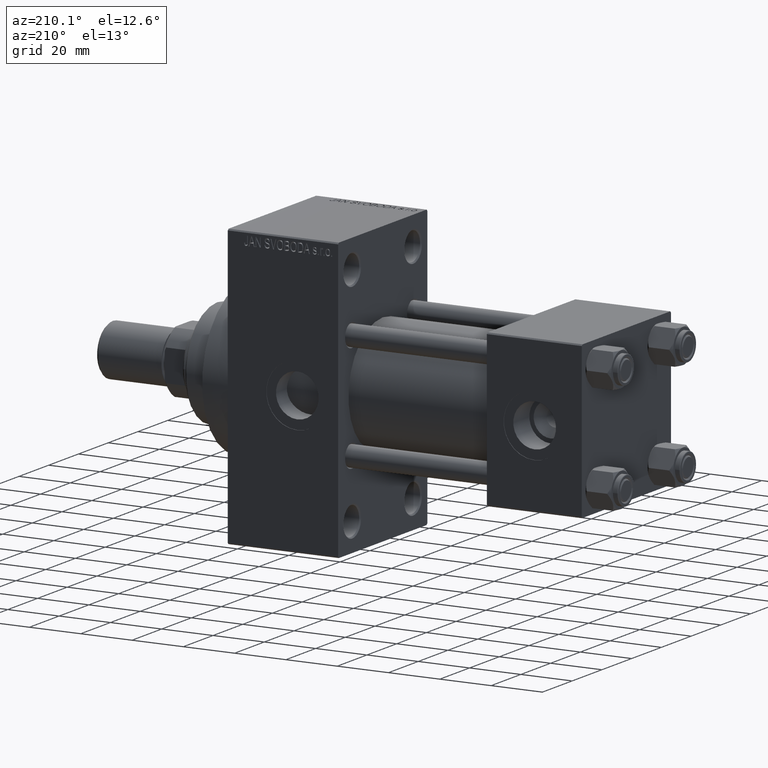
[diagram: clean part render]
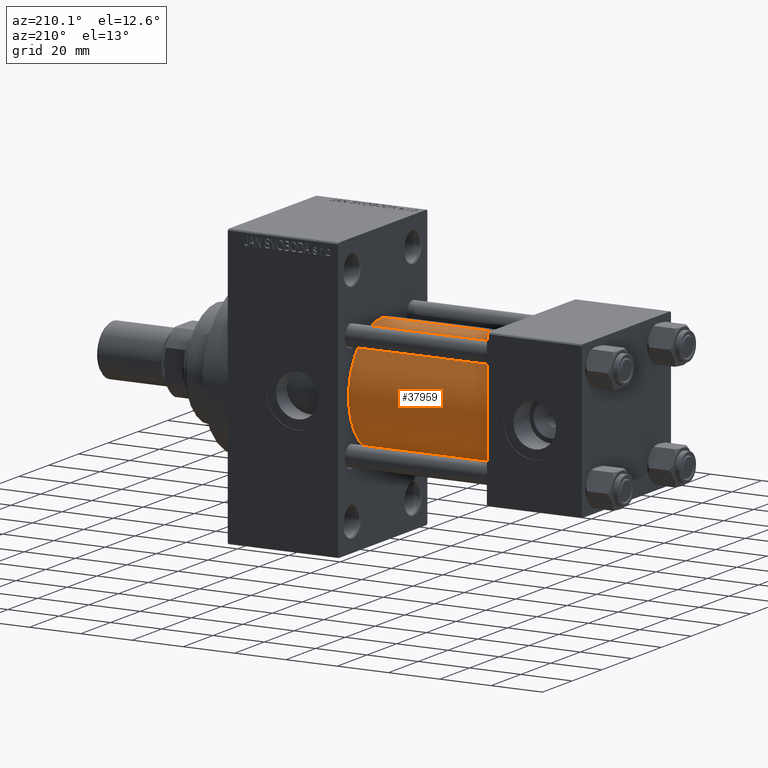
[diagram: same view with one face highlighted and labeled with its STEP entity id]
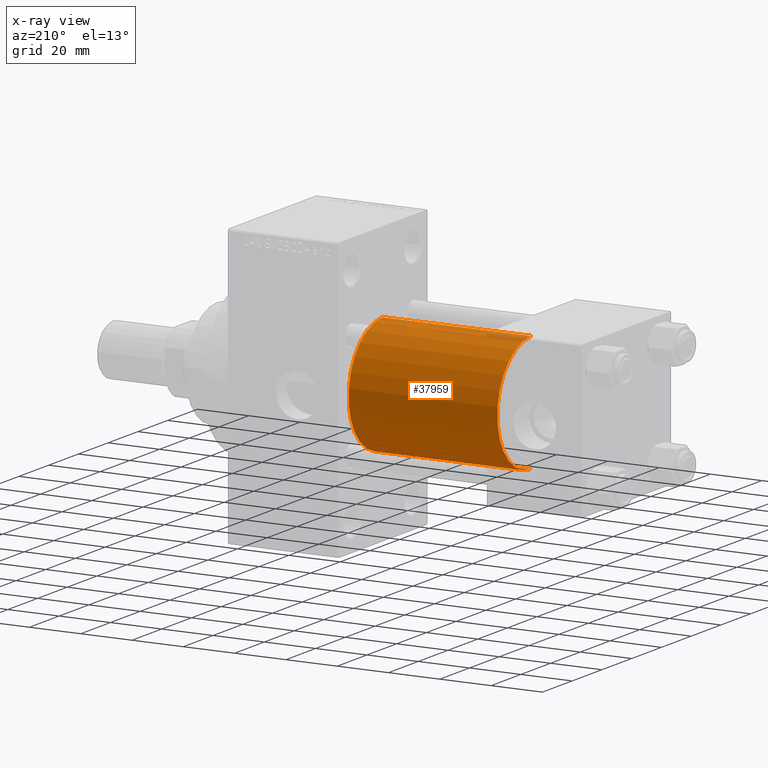
[diagram: x-ray of the same camera — body ghosted, the highlighted face saturated]
A machine part, auxiliary view. The second image highlights one B-rep face of the part: STEP entity #37959.
The next image is the same camera in x-ray: the body ghosted, the highlighted face saturated — about 2% of this face is hidden behind the body in this view.
In plain terms, the highlighted cylindrical surface (partial cylindrical patch) has radius 23 mm, axis along (-1, -0, -0).
Its self-contained STEP definition (entity closure, byte-faithful):
#1264 = CYLINDRICAL_SURFACE ( 'NONE', #25739, 23.00000000000000000 ) ;
#1370 = DIRECTION ( 'NONE',  ( -1.000000000000000000, -0.000000000000000000, -0.000000000000000000 ) ) ;
#1477 = VERTEX_POINT ( 'NONE', #47454 ) ;
#2270 = CARTESIAN_POINT ( 'NONE',  ( 95.00000000000000000, -2.602085213965210642E-15, 23.00000000000000000 ) ) ;
#2860 = EDGE_CURVE ( 'NONE', #39753, #32432, #30365, .T. ) ;
#3843 = DIRECTION ( 'NONE',  ( 1.000000000000000000, 0.000000000000000000, 0.000000000000000000 ) ) ;
#3996 = DIRECTION ( 'NONE',  ( 0.000000000000000000, 0.000000000000000000, 1.000000000000000000 ) ) ;
#4958 = CARTESIAN_POINT ( 'NONE',  ( 37.00000000000000000, 2.146024240737012665E-16, -23.00000000000000000 ) ) ;
#5600 = FACE_OUTER_BOUND ( 'NONE', #9153, .T. ) ;
#5943 = ORIENTED_EDGE ( 'NONE', *, *, #17084, .T. ) ;
#6026 = CARTESIAN_POINT ( 'NONE',  ( 37.00000000000000000, -2.602085213965210642E-15, 23.00000000000000000 ) ) ;
#8840 = AXIS2_PLACEMENT_3D ( 'NONE', #18009, #11013, #3996 ) ;
#9153 = EDGE_LOOP ( 'NONE', ( #42560, #5943, #18085, #11812 ) ) ;
#11013 = DIRECTION ( 'NONE',  ( 1.000000000000000000, -0.000000000000000000, 0.000000000000000000 ) ) ;
#11812 = ORIENTED_EDGE ( 'NONE', *, *, #2860, .F. ) ;
#12813 = VERTEX_POINT ( 'NONE', #4958 ) ;
#15420 = CARTESIAN_POINT ( 'NONE',  ( 95.00000000000000000, -2.602085213965210642E-15, 0.000000000000000000 ) ) ;
#16003 = CARTESIAN_POINT ( 'NONE',  ( 95.00000000000000000, -2.602085213965210642E-15, 0.000000000000000000 ) ) ;
#17084 = EDGE_CURVE ( 'NONE', #1477, #12813, #24923, .T. ) ;
#18009 = CARTESIAN_POINT ( 'NONE',  ( 37.00000000000000000, -2.602085213965210642E-15, 0.000000000000000000 ) ) ;
#18085 = ORIENTED_EDGE ( 'NONE', *, *, #42512, .T. ) ;
#18144 = DIRECTION ( 'NONE',  ( -1.000000000000000000, -0.000000000000000000, -0.000000000000000000 ) ) ;
#21567 = EDGE_CURVE ( 'NONE', #1477, #39753, #35367, .T. ) ;
#23111 = CARTESIAN_POINT ( 'NONE',  ( 95.00000000000000000, -2.602085213965210642E-15, 23.00000000000000000 ) ) ;
#24923 = LINE ( 'NONE', #25635, #45947 ) ;
#25635 = CARTESIAN_POINT ( 'NONE',  ( 95.00000000000000000, 2.146024240737012665E-16, -23.00000000000000000 ) ) ;
#25739 = AXIS2_PLACEMENT_3D ( 'NONE', #16003, #27101, #31677 ) ;
#26063 = DIRECTION ( 'NONE',  ( 0.000000000000000000, 0.000000000000000000, -1.000000000000000000 ) ) ;
#27101 = DIRECTION ( 'NONE',  ( -1.000000000000000000, -0.000000000000000000, -0.000000000000000000 ) ) ;
#30114 = VECTOR ( 'NONE', #1370, 1000.000000000000000 ) ;
#30365 = LINE ( 'NONE', #23111, #30114 ) ;
#31677 = DIRECTION ( 'NONE',  ( 0.000000000000000000, 0.000000000000000000, 1.000000000000000000 ) ) ;
#32432 = VERTEX_POINT ( 'NONE', #6026 ) ;
#35367 = CIRCLE ( 'NONE', #46129, 23.00000000000000000 ) ;
#37959 = ADVANCED_FACE ( 'NONE', ( #5600 ), #1264, .T. ) ;
#39753 = VERTEX_POINT ( 'NONE', #2270 ) ;
#42512 = EDGE_CURVE ( 'NONE', #12813, #32432, #43501, .T. ) ;
#42560 = ORIENTED_EDGE ( 'NONE', *, *, #21567, .F. ) ;
#43501 = CIRCLE ( 'NONE', #8840, 23.00000000000000000 ) ;
#45947 = VECTOR ( 'NONE', #18144, 1000.000000000000000 ) ;
#46129 = AXIS2_PLACEMENT_3D ( 'NONE', #15420, #3843, #26063 ) ;
#47454 = CARTESIAN_POINT ( 'NONE',  ( 95.00000000000000000, 2.146024240737012665E-16, -23.00000000000000000 ) ) ;